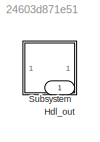
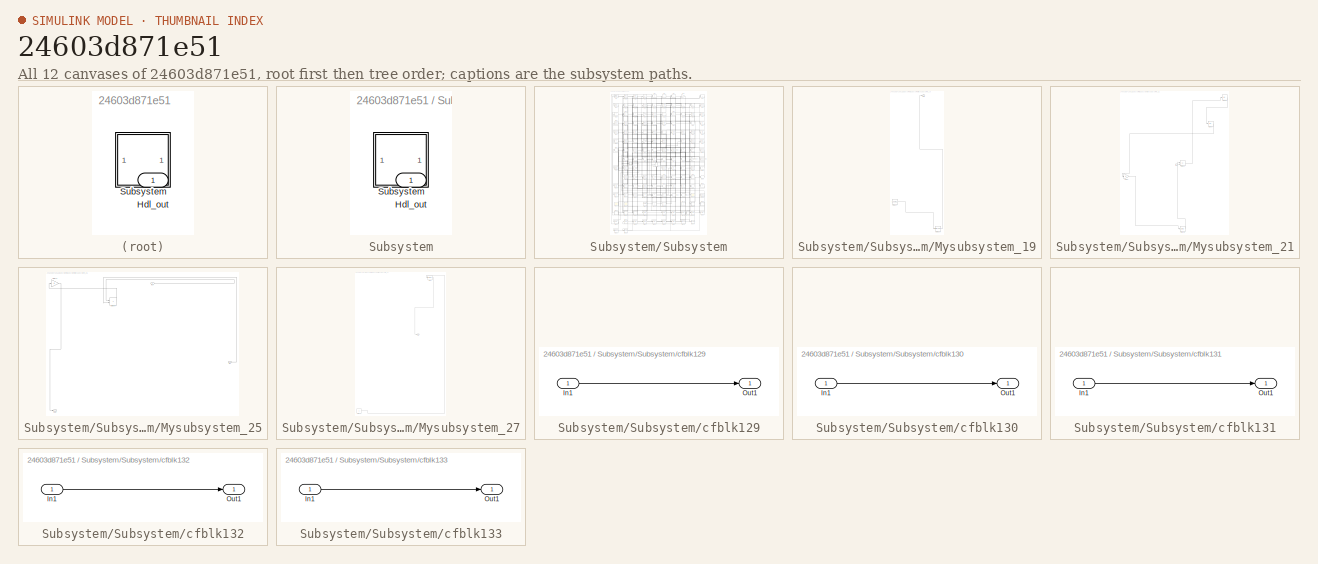
[diagram: thumbnail index - all 12 canvases of the model, root first then tree order]
MODEL slx_24603d871e51
KIND model
CONFIG AbsTol = auto
CONFIG EnableMultiTasking = off
CONFIG FixedStep = auto
CONFIG MaxStep = auto
CONFIG MinStep = auto
CONFIG RelTol = 1e-3
CONFIG SampleTimeConstraint = Unconstrained
CONFIG SolverName = VariableStepAuto
CONFIG StartTime = 0.0
CONFIG StopTime = 10.0
BLOCK [Outport] Hdl_out
  OutDataTypeStr = uint8
BLOCK [SubSystem] Subsystem
BLOCK [Outport] Subsystem/Hdl_out
  OutDataTypeStr = uint8
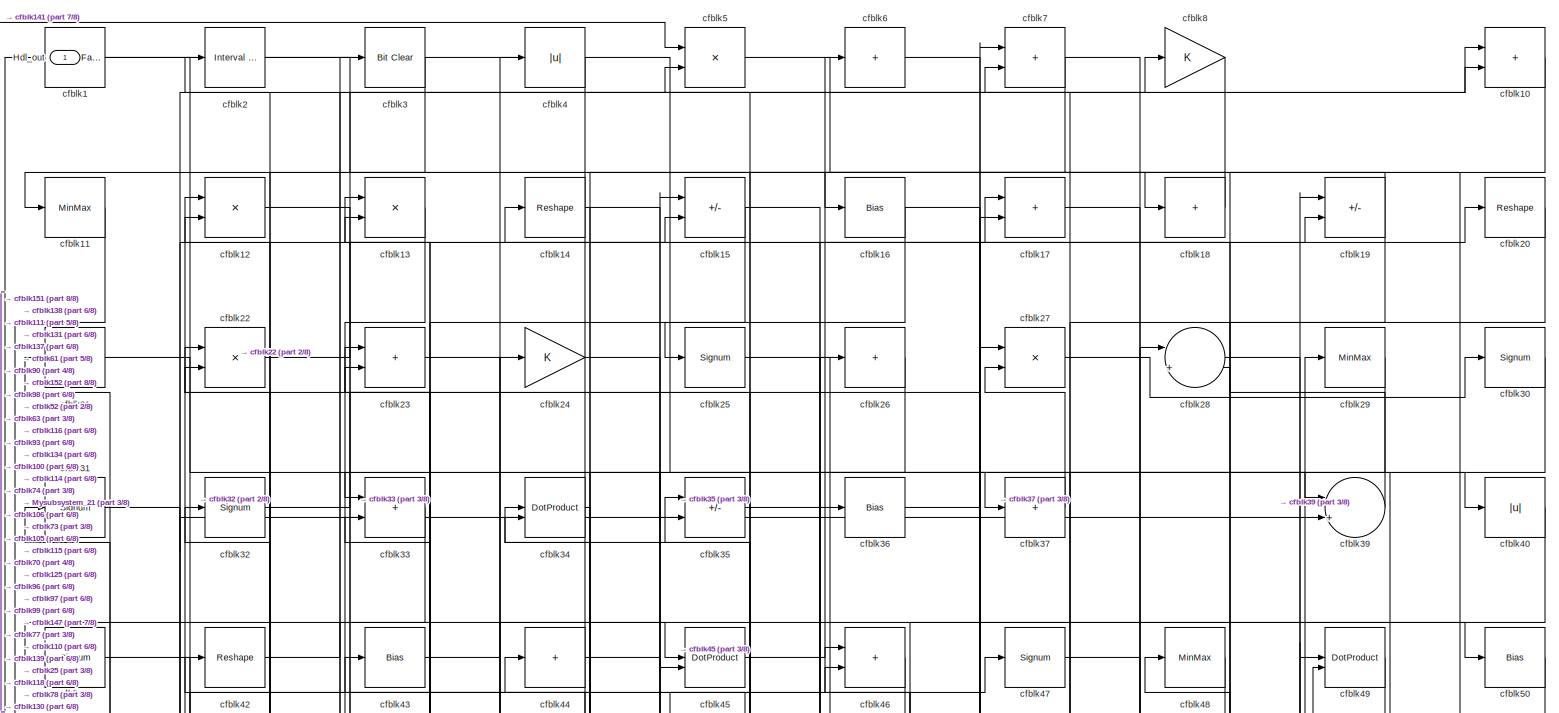
[diagram: Subsystem/Subsystem - part 1/8, full width, top band]
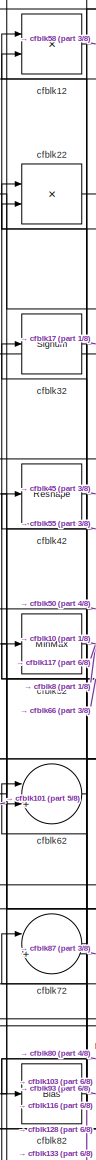
[diagram: Subsystem/Subsystem - part 2/8, top left region]
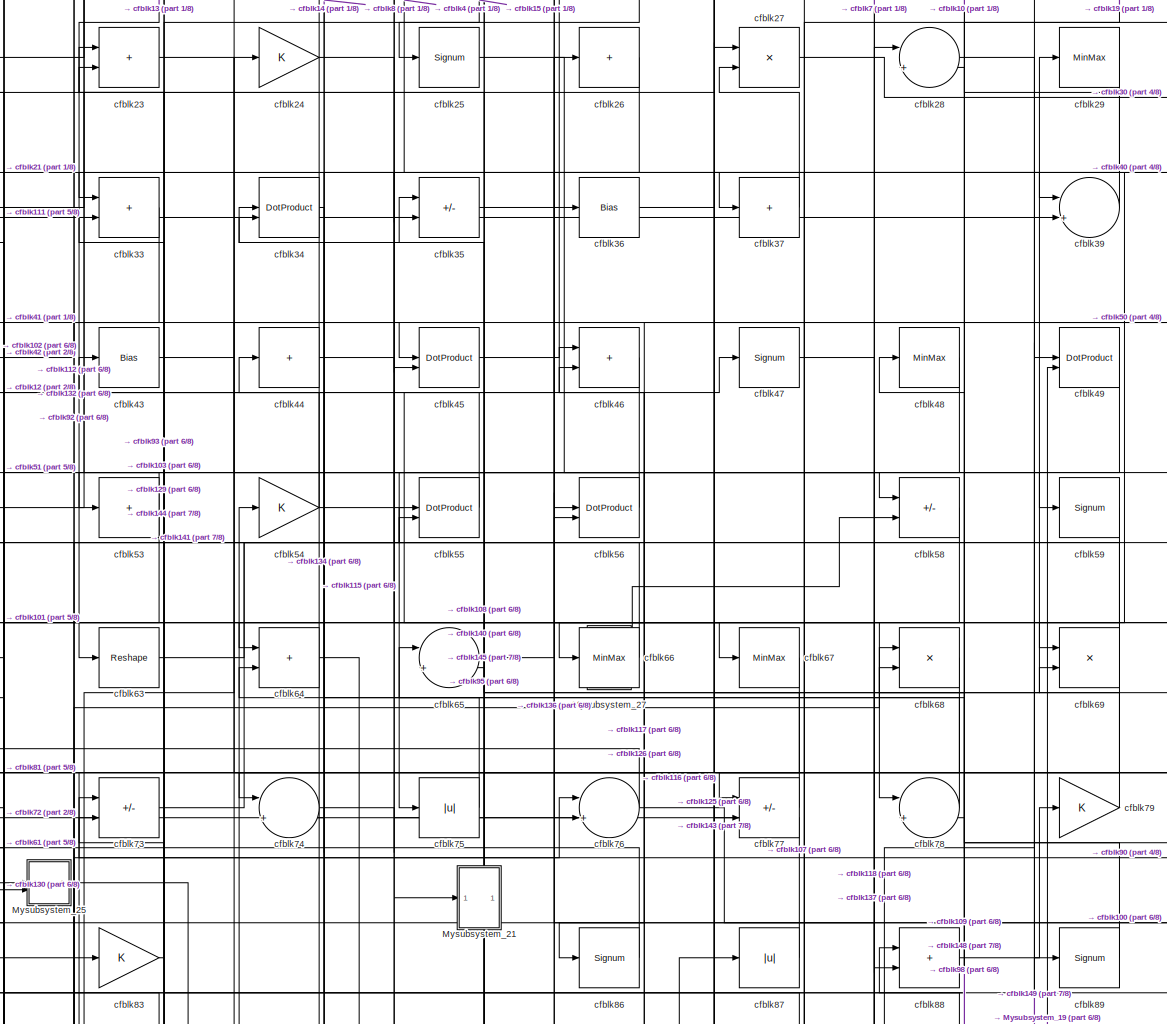
[diagram: Subsystem/Subsystem - part 3/8, central region]
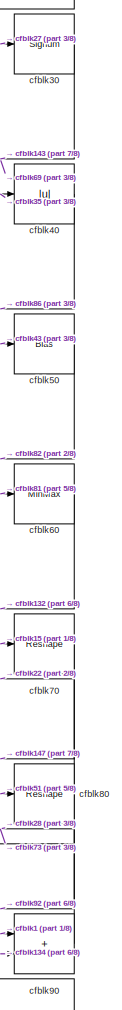
[diagram: Subsystem/Subsystem - part 4/8, middle right region]
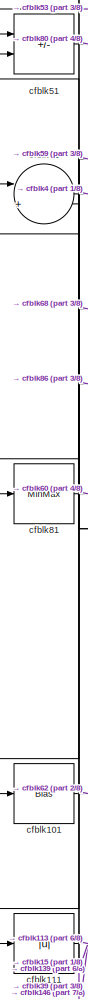
[diagram: Subsystem/Subsystem - part 5/8, middle left region]
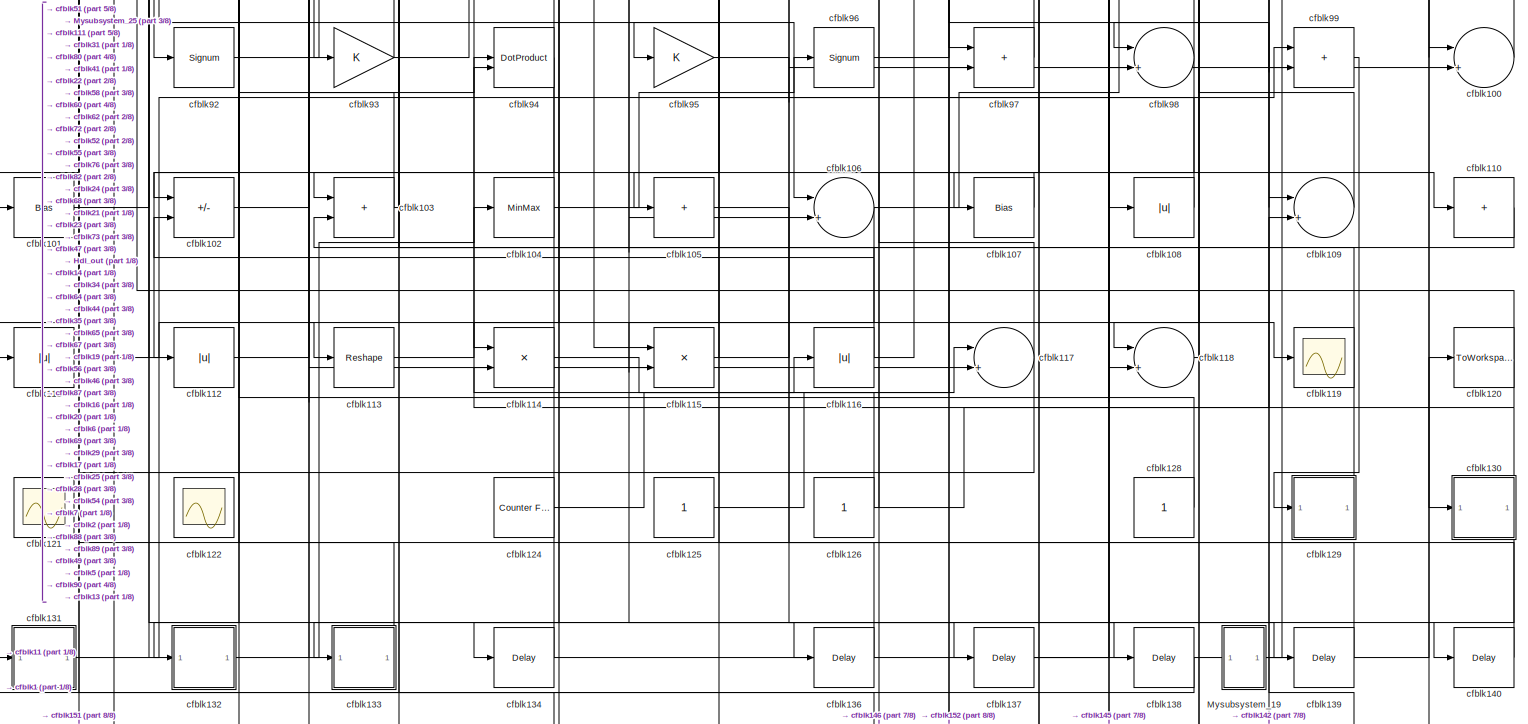
[diagram: Subsystem/Subsystem - part 6/8, full width, bottom band]
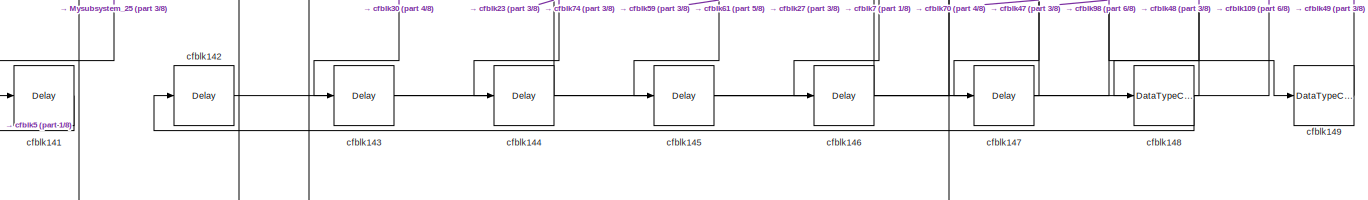
[diagram: Subsystem/Subsystem - part 7/8, full width, bottom band]
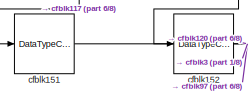
[diagram: Subsystem/Subsystem - part 8/8, bottom left region]
BLOCK [SubSystem] Subsystem/Subsystem
BLOCK [Outport] Subsystem/Subsystem/Hdl_out
  OutDataTypeStr = uint8
BLOCK [SubSystem] Subsystem/Subsystem/Mysubsystem_19
  RTWFcnName = Mysubsystem_19
  RTWFcnNameOpts = User specified
  RTWFileNameOpts = Use function name
  RTWSystemCode = Reusable function
  TreatAsAtomicUnit = on
BLOCK [Outport] Subsystem/Subsystem/Mysubsystem_19/Out1
BLOCK [Reference] Subsystem/Subsystem/Mysubsystem_19/cfblk127  REF=hdlsllib/Sources/Counter
Limited
  SourceBlock = hdlsllib/Sources/Counter\nLimited
  SourceType = Counter Limited
BLOCK [DataTypeConversion] Subsystem/Subsystem/Mysubsystem_19/cfblk150
  OutDataTypeStr = uint8
  RndMeth = Floor
  SaturateOnIntegerOverflow = off
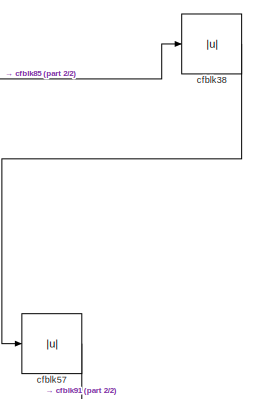
[diagram: Subsystem/Subsystem/Mysubsystem_21 - part 1/2, top right region]
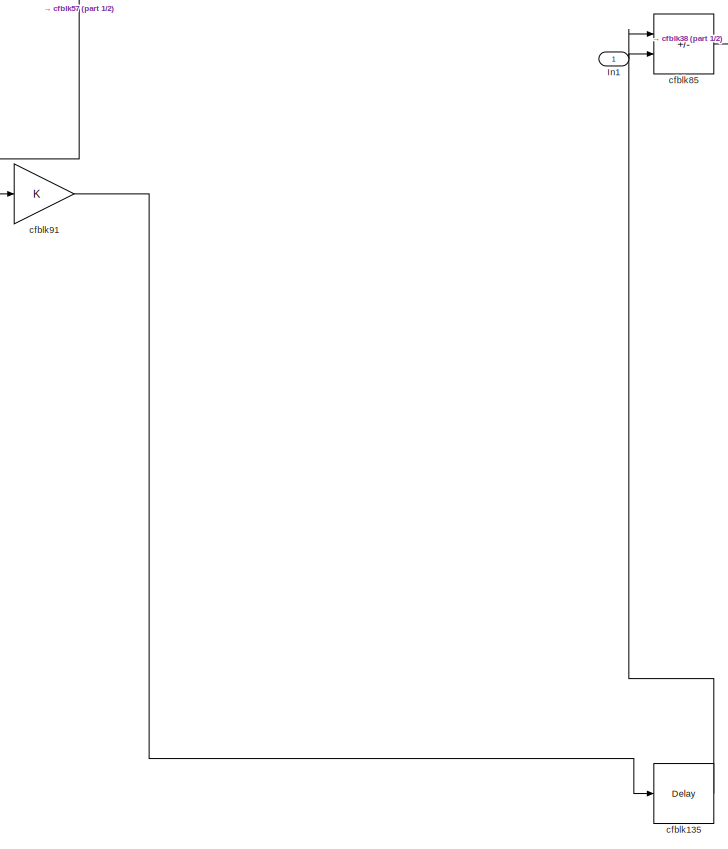
[diagram: Subsystem/Subsystem/Mysubsystem_21 - part 2/2, bottom left region]
BLOCK [SubSystem] Subsystem/Subsystem/Mysubsystem_21
  RTWFcnName = Mysubsystem_21
  RTWFcnNameOpts = User specified
  RTWFileNameOpts = Use function name
  RTWSystemCode = Reusable function
  TreatAsAtomicUnit = on
BLOCK [Inport] Subsystem/Subsystem/Mysubsystem_21/In1
BLOCK [Delay] Subsystem/Subsystem/Mysubsystem_21/cfblk135
  InputPortMap = u0
  SampleTime = 1
BLOCK [Abs] Subsystem/Subsystem/Mysubsystem_21/cfblk38
  SaturateOnIntegerOverflow = off
BLOCK [Abs] Subsystem/Subsystem/Mysubsystem_21/cfblk57
  SaturateOnIntegerOverflow = off
BLOCK [Sum] Subsystem/Subsystem/Mysubsystem_21/cfblk85
  IconShape = rectangular
  Inputs = +-
BLOCK [Gain] Subsystem/Subsystem/Mysubsystem_21/cfblk91
BLOCK [SubSystem] Subsystem/Subsystem/Mysubsystem_25
  RTWFcnName = Mysubsystem_25
  RTWFcnNameOpts = User specified
  RTWFileNameOpts = Use function name
  RTWSystemCode = Reusable function
  TreatAsAtomicUnit = on
BLOCK [Inport] Subsystem/Subsystem/Mysubsystem_25/In1
BLOCK [Inport] Subsystem/Subsystem/Mysubsystem_25/In2
  Port = 2
BLOCK [Outport] Subsystem/Subsystem/Mysubsystem_25/Out1
BLOCK [Gain] Subsystem/Subsystem/Mysubsystem_25/cfblk71
BLOCK [Sum] Subsystem/Subsystem/Mysubsystem_25/cfblk84
  IconShape = rectangular
BLOCK [SubSystem] Subsystem/Subsystem/Mysubsystem_27
  RTWFcnName = Mysubsystem_27
  RTWFcnNameOpts = User specified
  RTWFileNameOpts = Use function name
  RTWSystemCode = Reusable function
  TreatAsAtomicUnit = on
BLOCK [Outport] Subsystem/Subsystem/Mysubsystem_27/Out1
BLOCK [Constant] Subsystem/Subsystem/Mysubsystem_27/cfblk123
  SampleTime = -1
BLOCK [MinMax] Subsystem/Subsystem/Mysubsystem_27/cfblk9
BLOCK [Reference] Subsystem/Subsystem/cfblk1  REF=hdlsllib/Logic and Bit
Operations/Detect Fall
Nonpositive
  SourceBlock = hdlsllib/Logic and Bit\nOperations/Detect Fall\nNonpositive
  SourceType = Detect Fall Nonpositive
BLOCK [Sum] Subsystem/Subsystem/cfblk10
  IconShape = rectangular
  OutDataTypeStr = uint8
BLOCK [Sum] Subsystem/Subsystem/cfblk100
  Inputs = |++
  OutDataTypeStr = uint8
BLOCK [Bias] Subsystem/Subsystem/cfblk101
  Bias = 0.0
  SaturateOnIntegerOverflow = off
BLOCK [Sum] Subsystem/Subsystem/cfblk102
  IconShape = rectangular
  Inputs = +-
  OutDataTypeStr = uint8
BLOCK [Sum] Subsystem/Subsystem/cfblk103
  IconShape = rectangular
  OutDataTypeStr = uint8
BLOCK [MinMax] Subsystem/Subsystem/cfblk104
  OutDataTypeStr = uint8
BLOCK [Sum] Subsystem/Subsystem/cfblk105
  IconShape = rectangular
  Inputs = +
  OutDataTypeStr = uint8
BLOCK [Sum] Subsystem/Subsystem/cfblk106
  Inputs = |++
  OutDataTypeStr = uint8
BLOCK [Bias] Subsystem/Subsystem/cfblk107
  Bias = 0.0
  SaturateOnIntegerOverflow = off
BLOCK [Abs] Subsystem/Subsystem/cfblk108
  OutDataTypeStr = uint8
  SaturateOnIntegerOverflow = off
BLOCK [Sum] Subsystem/Subsystem/cfblk109
  Inputs = |++
  OutDataTypeStr = uint8
BLOCK [MinMax] Subsystem/Subsystem/cfblk11
  OutDataTypeStr = uint8
BLOCK [Sum] Subsystem/Subsystem/cfblk110
  IconShape = rectangular
  Inputs = +
  OutDataTypeStr = uint8
BLOCK [Abs] Subsystem/Subsystem/cfblk111
  OutDataTypeStr = uint8
  SaturateOnIntegerOverflow = off
BLOCK [Abs] Subsystem/Subsystem/cfblk112
  OutDataTypeStr = uint8
  SaturateOnIntegerOverflow = off
BLOCK [Reshape] Subsystem/Subsystem/cfblk113
BLOCK [Product] Subsystem/Subsystem/cfblk114
  Inputs = */
  OutDataTypeStr = uint8
  RndMeth = Zero
  SaturateOnIntegerOverflow = on
BLOCK [Product] Subsystem/Subsystem/cfblk115
  Inputs = */
  OutDataTypeStr = uint8
  RndMeth = Zero
  SaturateOnIntegerOverflow = on
BLOCK [Abs] Subsystem/Subsystem/cfblk116
  OutDataTypeStr = uint8
  SaturateOnIntegerOverflow = off
BLOCK [Sum] Subsystem/Subsystem/cfblk117
  Inputs = |++
  OutDataTypeStr = uint8
BLOCK [Sum] Subsystem/Subsystem/cfblk118
  Inputs = |++
  OutDataTypeStr = uint8
BLOCK [Scope] Subsystem/Subsystem/cfblk119
  Floating = off
  NumInputPorts = 1
  ScopeSpecificationString = Simulink.scopes.TimeScopeBlockCfg('CurrentConfiguration', extmgr.ConfigurationSet(extmgr.Configuration('Core','General UI',true),extmgr.Configuration('Core','Source UI',true),extmgr.Configuration('Sources','WiredSimulink',true,'DataLoggingVariableName','ScopeData1','DataLoggingSaveFormat','Array','DataLoggingLimitDataPoints',true,'DataLoggingDecimation','1'),extmgr.Configuration('Visuals','Time Do...<+868ch>
BLOCK [Product] Subsystem/Subsystem/cfblk12
  Inputs = */
  OutDataTypeStr = uint8
  RndMeth = Zero
  SaturateOnIntegerOverflow = on
BLOCK [ToWorkspace] Subsystem/Subsystem/cfblk120
  MaxDataPoints = inf
  SampleTime = -1
  SaveFormat = Timeseries
  VariableName = simout
BLOCK [Scope] Subsystem/Subsystem/cfblk121
  Floating = on
  NumInputPorts = 1
  ScopeSpecificationString = Simulink.scopes.TimeScopeBlockCfg('CurrentConfiguration', extmgr.ConfigurationSet(extmgr.Configuration('Core','General UI',true,'FigureColor',[0.156862745098039 0.156862745098039 0.156862745098039]),extmgr.Configuration('Core','Source UI',true),extmgr.Configuration('Sources','WiredSimulink',true,'DataLoggingVariableName','ScopeData2','DataLoggingSaveFormat','StructureWithTime','DataLoggingLimitDat...<+2713ch>
BLOCK [Scope] Subsystem/Subsystem/cfblk122
  Floating = on
  NumInputPorts = 1
  ScopeSpecificationString = Simulink.scopes.TimeScopeBlockCfg('CurrentConfiguration', extmgr.ConfigurationSet(extmgr.Configuration('Core','General UI',true,'FigureColor',[0.156862745098039 0.156862745098039 0.156862745098039]),extmgr.Configuration('Core','Source UI',true),extmgr.Configuration('Sources','WiredSimulink',true,'DataLoggingSaveFormat','StructureWithTime','DataLoggingLimitDataPoints',true,'DataLoggingDecimation','...<+2674ch>
BLOCK [Reference] Subsystem/Subsystem/cfblk124  REF=hdlsllib/Sources/Counter
Free-Running
  SourceBlock = hdlsllib/Sources/Counter\nFree-Running
  SourceType = Counter Free-Running
BLOCK [Constant] Subsystem/Subsystem/cfblk125
  OutDataTypeStr = uint8
  SampleTime = -1
BLOCK [Constant] Subsystem/Subsystem/cfblk126
  OutDataTypeStr = uint8
  SampleTime = -1
BLOCK [Constant] Subsystem/Subsystem/cfblk128
  OutDataTypeStr = uint8
  SampleTime = -1
BLOCK [SubSystem] Subsystem/Subsystem/cfblk129
  LibrarySourceBlock = hdlsllib/Ports &\nSubsystems/Subsystem
BLOCK [Inport] Subsystem/Subsystem/cfblk129/In1
BLOCK [Outport] Subsystem/Subsystem/cfblk129/Out1
BLOCK [Product] Subsystem/Subsystem/cfblk13
  Inputs = */
  OutDataTypeStr = uint8
  RndMeth = Zero
  SaturateOnIntegerOverflow = on
BLOCK [SubSystem] Subsystem/Subsystem/cfblk130
  LibrarySourceBlock = hdlsllib/Ports &\nSubsystems/Subsystem
BLOCK [Inport] Subsystem/Subsystem/cfblk130/In1
BLOCK [Outport] Subsystem/Subsystem/cfblk130/Out1
BLOCK [SubSystem] Subsystem/Subsystem/cfblk131
  LibrarySourceBlock = hdlsllib/Ports &\nSubsystems/Subsystem
BLOCK [Inport] Subsystem/Subsystem/cfblk131/In1
BLOCK [Outport] Subsystem/Subsystem/cfblk131/Out1
BLOCK [SubSystem] Subsystem/Subsystem/cfblk132
  LibrarySourceBlock = hdlsllib/Ports &\nSubsystems/Subsystem
BLOCK [Inport] Subsystem/Subsystem/cfblk132/In1
BLOCK [Outport] Subsystem/Subsystem/cfblk132/Out1
BLOCK [SubSystem] Subsystem/Subsystem/cfblk133
  LibrarySourceBlock = hdlsllib/Ports &\nSubsystems/Subsystem
BLOCK [Inport] Subsystem/Subsystem/cfblk133/In1
BLOCK [Outport] Subsystem/Subsystem/cfblk133/Out1
BLOCK [Delay] Subsystem/Subsystem/cfblk134
  InputPortMap = u0
  SampleTime = 1
BLOCK [Delay] Subsystem/Subsystem/cfblk136
  InputPortMap = u0
  SampleTime = 1
BLOCK [Delay] Subsystem/Subsystem/cfblk137
  InputPortMap = u0
  SampleTime = 1
BLOCK [Delay] Subsystem/Subsystem/cfblk138
  InputPortMap = u0
  SampleTime = 1
BLOCK [Delay] Subsystem/Subsystem/cfblk139
  InputPortMap = u0
  SampleTime = 1
BLOCK [Reshape] Subsystem/Subsystem/cfblk14
BLOCK [Delay] Subsystem/Subsystem/cfblk140
  InputPortMap = u0
  SampleTime = 1
BLOCK [Delay] Subsystem/Subsystem/cfblk141
  InputPortMap = u0
  SampleTime = 1
BLOCK [Delay] Subsystem/Subsystem/cfblk142
  InputPortMap = u0
  SampleTime = 1
BLOCK [Delay] Subsystem/Subsystem/cfblk143
  InputPortMap = u0
  SampleTime = 1
BLOCK [Delay] Subsystem/Subsystem/cfblk144
  InputPortMap = u0
  SampleTime = 1
BLOCK [Delay] Subsystem/Subsystem/cfblk145
  InputPortMap = u0
  SampleTime = 1
BLOCK [Delay] Subsystem/Subsystem/cfblk146
  InputPortMap = u0
  SampleTime = 1
BLOCK [Delay] Subsystem/Subsystem/cfblk147
  InputPortMap = u0
  SampleTime = 1
BLOCK [DataTypeConversion] Subsystem/Subsystem/cfblk148
  OutDataTypeStr = uint8
  RndMeth = Floor
  SaturateOnIntegerOverflow = off
BLOCK [DataTypeConversion] Subsystem/Subsystem/cfblk149
  OutDataTypeStr = uint8
  RndMeth = Floor
  SaturateOnIntegerOverflow = off
BLOCK [Sum] Subsystem/Subsystem/cfblk15
  IconShape = rectangular
  Inputs = +-
  OutDataTypeStr = uint8
BLOCK [DataTypeConversion] Subsystem/Subsystem/cfblk151
  OutDataTypeStr = uint8
  RndMeth = Floor
  SaturateOnIntegerOverflow = off
BLOCK [DataTypeConversion] Subsystem/Subsystem/cfblk152
  OutDataTypeStr = uint8
  RndMeth = Floor
  SaturateOnIntegerOverflow = off
BLOCK [Bias] Subsystem/Subsystem/cfblk16
  Bias = 0.0
  SaturateOnIntegerOverflow = off
BLOCK [Sum] Subsystem/Subsystem/cfblk17
  IconShape = rectangular
  OutDataTypeStr = uint8
BLOCK [Sum] Subsystem/Subsystem/cfblk18
  IconShape = rectangular
  Inputs = +
  OutDataTypeStr = uint8
BLOCK [Sum] Subsystem/Subsystem/cfblk19
  IconShape = rectangular
  Inputs = +-
  OutDataTypeStr = uint8
BLOCK [Reference] Subsystem/Subsystem/cfblk2  REF=hdlsllib/Logic and Bit
Operations/Interval Test
  SourceBlock = hdlsllib/Logic and Bit\nOperations/Interval Test
  SourceType = Interval Test
BLOCK [Reshape] Subsystem/Subsystem/cfblk20
BLOCK [Sum] Subsystem/Subsystem/cfblk21
  IconShape = rectangular
  Inputs = +
  OutDataTypeStr = uint8
BLOCK [Product] Subsystem/Subsystem/cfblk22
  Inputs = */
  OutDataTypeStr = uint8
  RndMeth = Zero
  SaturateOnIntegerOverflow = on
BLOCK [Sum] Subsystem/Subsystem/cfblk23
  IconShape = rectangular
  OutDataTypeStr = uint8
BLOCK [Gain] Subsystem/Subsystem/cfblk24
  OutDataTypeStr = uint8
BLOCK [Signum] Subsystem/Subsystem/cfblk25
BLOCK [Sum] Subsystem/Subsystem/cfblk26
  IconShape = rectangular
  Inputs = +
  OutDataTypeStr = uint8
BLOCK [Product] Subsystem/Subsystem/cfblk27
  Inputs = */
  OutDataTypeStr = uint8
  RndMeth = Zero
  SaturateOnIntegerOverflow = on
BLOCK [Sum] Subsystem/Subsystem/cfblk28
  Inputs = |++
  OutDataTypeStr = uint8
BLOCK [MinMax] Subsystem/Subsystem/cfblk29
  OutDataTypeStr = uint8
BLOCK [Reference] Subsystem/Subsystem/cfblk3  REF=simulink/Logic and Bit
Operations/Bit Clear
  LibrarySourceBlock = hdlsllib/Logic and Bit\nOperations/Bit Clear
  SourceBlock = simulink/Logic and Bit\nOperations/Bit Clear
  SourceType = Bit Clear
BLOCK [Signum] Subsystem/Subsystem/cfblk30
BLOCK [Signum] Subsystem/Subsystem/cfblk31
BLOCK [Signum] Subsystem/Subsystem/cfblk32
BLOCK [Sum] Subsystem/Subsystem/cfblk33
  IconShape = rectangular
  OutDataTypeStr = uint8
BLOCK [DotProduct] Subsystem/Subsystem/cfblk34
  OutDataTypeStr = uint8
BLOCK [Sum] Subsystem/Subsystem/cfblk35
  IconShape = rectangular
  Inputs = +-
  OutDataTypeStr = uint8
BLOCK [Bias] Subsystem/Subsystem/cfblk36
  Bias = 0.0
  SaturateOnIntegerOverflow = off
BLOCK [Sum] Subsystem/Subsystem/cfblk37
  IconShape = rectangular
  Inputs = +
  OutDataTypeStr = uint8
BLOCK [Sum] Subsystem/Subsystem/cfblk39
  Inputs = |++
  OutDataTypeStr = uint8
BLOCK [Abs] Subsystem/Subsystem/cfblk4
  OutDataTypeStr = uint8
  SaturateOnIntegerOverflow = off
BLOCK [Abs] Subsystem/Subsystem/cfblk40
  OutDataTypeStr = uint8
  SaturateOnIntegerOverflow = off
BLOCK [Signum] Subsystem/Subsystem/cfblk41
BLOCK [Reshape] Subsystem/Subsystem/cfblk42
BLOCK [Bias] Subsystem/Subsystem/cfblk43
  Bias = 0.0
  SaturateOnIntegerOverflow = off
BLOCK [Sum] Subsystem/Subsystem/cfblk44
  IconShape = rectangular
  Inputs = +
  OutDataTypeStr = uint8
BLOCK [DotProduct] Subsystem/Subsystem/cfblk45
  OutDataTypeStr = uint8
BLOCK [Sum] Subsystem/Subsystem/cfblk46
  IconShape = rectangular
  OutDataTypeStr = uint8
BLOCK [Signum] Subsystem/Subsystem/cfblk47
BLOCK [MinMax] Subsystem/Subsystem/cfblk48
  OutDataTypeStr = uint8
BLOCK [DotProduct] Subsystem/Subsystem/cfblk49
  OutDataTypeStr = uint8
BLOCK [Product] Subsystem/Subsystem/cfblk5
  Inputs = */
  OutDataTypeStr = uint8
  RndMeth = Zero
  SaturateOnIntegerOverflow = on
BLOCK [Bias] Subsystem/Subsystem/cfblk50
  Bias = 0.0
  SaturateOnIntegerOverflow = off
BLOCK [Sum] Subsystem/Subsystem/cfblk51
  IconShape = rectangular
  Inputs = +-
  OutDataTypeStr = uint8
BLOCK [MinMax] Subsystem/Subsystem/cfblk52
  OutDataTypeStr = uint8
BLOCK [Sum] Subsystem/Subsystem/cfblk53
  IconShape = rectangular
  Inputs = +
  OutDataTypeStr = uint8
BLOCK [Gain] Subsystem/Subsystem/cfblk54
  OutDataTypeStr = uint8
BLOCK [DotProduct] Subsystem/Subsystem/cfblk55
  OutDataTypeStr = uint8
BLOCK [DotProduct] Subsystem/Subsystem/cfblk56
  OutDataTypeStr = uint8
BLOCK [Sum] Subsystem/Subsystem/cfblk58
  IconShape = rectangular
  Inputs = +-
  OutDataTypeStr = uint8
BLOCK [Signum] Subsystem/Subsystem/cfblk59
BLOCK [Sum] Subsystem/Subsystem/cfblk6
  IconShape = rectangular
  Inputs = +
  OutDataTypeStr = uint8
BLOCK [MinMax] Subsystem/Subsystem/cfblk60
  OutDataTypeStr = uint8
BLOCK [Sum] Subsystem/Subsystem/cfblk61
  Inputs = |++
  OutDataTypeStr = uint8
BLOCK [Sum] Subsystem/Subsystem/cfblk62
  Inputs = |++
  OutDataTypeStr = uint8
BLOCK [Reshape] Subsystem/Subsystem/cfblk63
BLOCK [Sum] Subsystem/Subsystem/cfblk64
  IconShape = rectangular
  OutDataTypeStr = uint8
BLOCK [Sum] Subsystem/Subsystem/cfblk65
  Inputs = |++
  OutDataTypeStr = uint8
BLOCK [MinMax] Subsystem/Subsystem/cfblk66
  OutDataTypeStr = uint8
BLOCK [MinMax] Subsystem/Subsystem/cfblk67
  OutDataTypeStr = uint8
BLOCK [Product] Subsystem/Subsystem/cfblk68
  Inputs = */
  OutDataTypeStr = uint8
  RndMeth = Zero
  SaturateOnIntegerOverflow = on
BLOCK [Product] Subsystem/Subsystem/cfblk69
  Inputs = */
  OutDataTypeStr = uint8
  RndMeth = Zero
  SaturateOnIntegerOverflow = on
BLOCK [Sum] Subsystem/Subsystem/cfblk7
  IconShape = rectangular
  OutDataTypeStr = uint8
BLOCK [Reshape] Subsystem/Subsystem/cfblk70
BLOCK [Sum] Subsystem/Subsystem/cfblk72
  Inputs = |++
  OutDataTypeStr = uint8
BLOCK [Sum] Subsystem/Subsystem/cfblk73
  IconShape = rectangular
  Inputs = +-
  OutDataTypeStr = uint8
BLOCK [Sum] Subsystem/Subsystem/cfblk74
  Inputs = |++
  OutDataTypeStr = uint8
BLOCK [Abs] Subsystem/Subsystem/cfblk75
  OutDataTypeStr = uint8
  SaturateOnIntegerOverflow = off
BLOCK [Sum] Subsystem/Subsystem/cfblk76
  Inputs = |++
  OutDataTypeStr = uint8
BLOCK [Sum] Subsystem/Subsystem/cfblk77
  IconShape = rectangular
  Inputs = +-
  OutDataTypeStr = uint8
BLOCK [Sum] Subsystem/Subsystem/cfblk78
  Inputs = |++
  OutDataTypeStr = uint8
BLOCK [Gain] Subsystem/Subsystem/cfblk79
  OutDataTypeStr = uint8
BLOCK [Gain] Subsystem/Subsystem/cfblk8
  OutDataTypeStr = uint8
BLOCK [Reshape] Subsystem/Subsystem/cfblk80
BLOCK [MinMax] Subsystem/Subsystem/cfblk81
  OutDataTypeStr = uint8
BLOCK [Bias] Subsystem/Subsystem/cfblk82
  Bias = 0.0
  SaturateOnIntegerOverflow = off
BLOCK [Gain] Subsystem/Subsystem/cfblk83
  OutDataTypeStr = uint8
BLOCK [Signum] Subsystem/Subsystem/cfblk86
BLOCK [Abs] Subsystem/Subsystem/cfblk87
  OutDataTypeStr = uint8
  SaturateOnIntegerOverflow = off
BLOCK [Sum] Subsystem/Subsystem/cfblk88
  IconShape = rectangular
  OutDataTypeStr = uint8
BLOCK [Signum] Subsystem/Subsystem/cfblk89
BLOCK [Sum] Subsystem/Subsystem/cfblk90
  IconShape = rectangular
  OutDataTypeStr = uint8
BLOCK [Signum] Subsystem/Subsystem/cfblk92
BLOCK [Gain] Subsystem/Subsystem/cfblk93
  OutDataTypeStr = uint8
BLOCK [DotProduct] Subsystem/Subsystem/cfblk94
  OutDataTypeStr = uint8
BLOCK [Gain] Subsystem/Subsystem/cfblk95
  OutDataTypeStr = uint8
BLOCK [Signum] Subsystem/Subsystem/cfblk96
BLOCK [Sum] Subsystem/Subsystem/cfblk97
  IconShape = rectangular
  OutDataTypeStr = uint8
BLOCK [Sum] Subsystem/Subsystem/cfblk98
  Inputs = |++
  OutDataTypeStr = uint8
BLOCK [Sum] Subsystem/Subsystem/cfblk99
  IconShape = rectangular
  OutDataTypeStr = uint8
LINE Subsystem/Subsystem/Mysubsystem_19/cfblk127:1 -> Subsystem/Subsystem/Mysubsystem_19/cfblk150:1
LINE Subsystem/Subsystem/Mysubsystem_19/cfblk150:1 -> Subsystem/Subsystem/Mysubsystem_19/Out1:1
LINE Subsystem/Subsystem/Mysubsystem_19:1 -> Subsystem/Subsystem/cfblk49:2
LINE Subsystem/Subsystem/Mysubsystem_21/In1:1 -> Subsystem/Subsystem/Mysubsystem_21/cfblk85:2
LINE Subsystem/Subsystem/Mysubsystem_21/cfblk135:1 -> Subsystem/Subsystem/Mysubsystem_21/cfblk85:1
LINE Subsystem/Subsystem/Mysubsystem_21/cfblk38:1 -> Subsystem/Subsystem/Mysubsystem_21/cfblk57:1
LINE Subsystem/Subsystem/Mysubsystem_21/cfblk57:1 -> Subsystem/Subsystem/Mysubsystem_21/cfblk91:1
LINE Subsystem/Subsystem/Mysubsystem_21/cfblk85:1 -> Subsystem/Subsystem/Mysubsystem_21/cfblk38:1
LINE Subsystem/Subsystem/Mysubsystem_21/cfblk91:1 -> Subsystem/Subsystem/Mysubsystem_21/cfblk135:1
LINE Subsystem/Subsystem/Mysubsystem_25/In1:1 -> Subsystem/Subsystem/Mysubsystem_25/cfblk84:1
LINE Subsystem/Subsystem/Mysubsystem_25/In2:1 -> Subsystem/Subsystem/Mysubsystem_25/cfblk84:2
LINE Subsystem/Subsystem/Mysubsystem_25/cfblk71:1 -> Subsystem/Subsystem/Mysubsystem_25/Out1:1
LINE Subsystem/Subsystem/Mysubsystem_25/cfblk84:1 -> Subsystem/Subsystem/Mysubsystem_25/cfblk71:1
LINE Subsystem/Subsystem/Mysubsystem_25:1 -> Subsystem/Subsystem/cfblk141:1
LINE Subsystem/Subsystem/Mysubsystem_27/cfblk123:1 -> Subsystem/Subsystem/Mysubsystem_27/cfblk9:1
LINE Subsystem/Subsystem/Mysubsystem_27/cfblk9:1 -> Subsystem/Subsystem/Mysubsystem_27/Out1:1
LINE Subsystem/Subsystem/Mysubsystem_27:1 -> Subsystem/Subsystem/cfblk58:2
NET Subsystem/Subsystem/cfblk100:1 -> Subsystem/Subsystem/cfblk13:1, Subsystem/Subsystem/cfblk34:1
LINE Subsystem/Subsystem/cfblk101:1 -> Subsystem/Subsystem/cfblk62:2
LINE Subsystem/Subsystem/cfblk102:1 -> Subsystem/Subsystem/cfblk94:2
NET Subsystem/Subsystem/cfblk103:1 -> Subsystem/Subsystem/cfblk72:1, Subsystem/Subsystem/cfblk73:2
LINE Subsystem/Subsystem/cfblk104:1 -> Subsystem/Subsystem/cfblk96:1
LINE Subsystem/Subsystem/cfblk105:1 -> Subsystem/Subsystem/cfblk138:1
NET Subsystem/Subsystem/cfblk106:1 -> Subsystem/Subsystem/cfblk115:2, Subsystem/Subsystem/cfblk19:1
LINE Subsystem/Subsystem/cfblk107:1 -> Subsystem/Subsystem/cfblk103:1
LINE Subsystem/Subsystem/cfblk108:1 -> Subsystem/Subsystem/cfblk35:1
LINE Subsystem/Subsystem/cfblk109:1 -> Subsystem/Subsystem/cfblk65:1
LINE Subsystem/Subsystem/cfblk10:1 -> Subsystem/Subsystem/cfblk78:2
LINE Subsystem/Subsystem/cfblk110:1 -> Subsystem/Subsystem/cfblk103:2
NET Subsystem/Subsystem/cfblk111:1 -> Subsystem/Subsystem/cfblk113:1, Subsystem/Subsystem/cfblk15:2, Subsystem/Subsystem/cfblk39:2
NET Subsystem/Subsystem/cfblk112:1 -> Subsystem/Subsystem/cfblk119:1, Subsystem/Subsystem/cfblk76:1
LINE Subsystem/Subsystem/cfblk113:1 -> Subsystem/Subsystem/cfblk94:1
LINE Subsystem/Subsystem/cfblk114:1 -> Subsystem/Subsystem/cfblk117:1
NET Subsystem/Subsystem/cfblk115:1 -> Subsystem/Subsystem/cfblk19:2, Subsystem/Subsystem/cfblk5:2
NET Subsystem/Subsystem/cfblk116:1 -> Subsystem/Subsystem/cfblk102:2, Subsystem/Subsystem/cfblk13:2, Subsystem/Subsystem/cfblk52:1, Subsystem/Subsystem/cfblk87:1
NET Subsystem/Subsystem/cfblk117:1 -> Subsystem/Subsystem/cfblk151:1, Subsystem/Subsystem/cfblk46:1
LINE Subsystem/Subsystem/cfblk118:1 -> Subsystem/Subsystem/cfblk88:1
LINE Subsystem/Subsystem/cfblk11:1 -> Subsystem/Subsystem/cfblk131:1
LINE Subsystem/Subsystem/cfblk124:1 -> Subsystem/Subsystem/cfblk116:1
NET Subsystem/Subsystem/cfblk125:1 -> Subsystem/Subsystem/cfblk20:1, Subsystem/Subsystem/cfblk69:2
NET Subsystem/Subsystem/cfblk126:1 -> Subsystem/Subsystem/cfblk46:2, Subsystem/Subsystem/cfblk54:1, Subsystem/Subsystem/cfblk89:1
LINE Subsystem/Subsystem/cfblk128:1 -> Subsystem/Subsystem/cfblk62:1
LINE Subsystem/Subsystem/cfblk129/In1:1 -> Subsystem/Subsystem/cfblk129/Out1:1
LINE Subsystem/Subsystem/cfblk129:1 -> Subsystem/Subsystem/cfblk23:1
LINE Subsystem/Subsystem/cfblk12:1 -> Subsystem/Subsystem/cfblk58:1
LINE Subsystem/Subsystem/cfblk130/In1:1 -> Subsystem/Subsystem/cfblk130/Out1:1
NET Subsystem/Subsystem/cfblk130:1 -> Subsystem/Subsystem/Mysubsystem_25:2, Subsystem/Subsystem/cfblk114:2, Subsystem/Subsystem/cfblk133:1, Subsystem/Subsystem/cfblk140:1
LINE Subsystem/Subsystem/cfblk131/In1:1 -> Subsystem/Subsystem/cfblk131/Out1:1
NET Subsystem/Subsystem/cfblk131:1 -> Subsystem/Subsystem/cfblk6:1, Subsystem/Subsystem/cfblk99:1
LINE Subsystem/Subsystem/cfblk132/In1:1 -> Subsystem/Subsystem/cfblk132/Out1:1
NET Subsystem/Subsystem/cfblk132:1 -> Subsystem/Subsystem/cfblk104:1, Subsystem/Subsystem/cfblk55:2
LINE Subsystem/Subsystem/cfblk133/In1:1 -> Subsystem/Subsystem/cfblk133/Out1:1
LINE Subsystem/Subsystem/cfblk133:1 -> Subsystem/Subsystem/cfblk22:1
NET Subsystem/Subsystem/cfblk134:1 -> Subsystem/Subsystem/Hdl_out:1, Subsystem/Subsystem/cfblk90:2
LINE Subsystem/Subsystem/cfblk136:1 -> Subsystem/Subsystem/cfblk56:1
LINE Subsystem/Subsystem/cfblk137:1 -> Subsystem/Subsystem/cfblk28:1
LINE Subsystem/Subsystem/cfblk138:1 -> Subsystem/Subsystem/cfblk1:1
LINE Subsystem/Subsystem/cfblk139:1 -> Subsystem/Subsystem/cfblk51:2
LINE Subsystem/Subsystem/cfblk13:1 -> Subsystem/Subsystem/cfblk63:1
LINE Subsystem/Subsystem/cfblk140:1 -> Subsystem/Subsystem/cfblk65:2
LINE Subsystem/Subsystem/cfblk141:1 -> Subsystem/Subsystem/cfblk5:1
LINE Subsystem/Subsystem/cfblk142:1 -> Subsystem/Subsystem/cfblk109:2
LINE Subsystem/Subsystem/cfblk143:1 -> Subsystem/Subsystem/cfblk27:1
LINE Subsystem/Subsystem/cfblk144:1 -> Subsystem/Subsystem/cfblk23:2
LINE Subsystem/Subsystem/cfblk145:1 -> Subsystem/Subsystem/cfblk98:2
LINE Subsystem/Subsystem/cfblk146:1 -> Subsystem/Subsystem/cfblk61:2
LINE Subsystem/Subsystem/cfblk147:1 -> Subsystem/Subsystem/cfblk7:2
NET Subsystem/Subsystem/cfblk148:1 -> Subsystem/Subsystem/cfblk142:1, Subsystem/Subsystem/cfblk48:1
LINE Subsystem/Subsystem/cfblk149:1 -> Subsystem/Subsystem/cfblk49:1
NET Subsystem/Subsystem/cfblk14:1 -> Subsystem/Subsystem/Mysubsystem_21:1, Subsystem/Subsystem/cfblk106:2, Subsystem/Subsystem/cfblk114:1
LINE Subsystem/Subsystem/cfblk151:1 -> Subsystem/Subsystem/cfblk3:1
NET Subsystem/Subsystem/cfblk152:1 -> Subsystem/Subsystem/cfblk120:1, Subsystem/Subsystem/cfblk97:2
NET Subsystem/Subsystem/cfblk15:1 -> Subsystem/Subsystem/cfblk33:1, Subsystem/Subsystem/cfblk70:1
NET Subsystem/Subsystem/cfblk16:1 -> Subsystem/Subsystem/cfblk105:1, Subsystem/Subsystem/cfblk97:1
LINE Subsystem/Subsystem/cfblk17:1 -> Subsystem/Subsystem/cfblk139:1
LINE Subsystem/Subsystem/cfblk18:1 -> Subsystem/Subsystem/cfblk11:1
NET Subsystem/Subsystem/cfblk19:1 -> Subsystem/Subsystem/cfblk16:1, Subsystem/Subsystem/cfblk77:1
LINE Subsystem/Subsystem/cfblk1:1 -> Subsystem/Subsystem/cfblk90:1
LINE Subsystem/Subsystem/cfblk20:1 -> Subsystem/Subsystem/cfblk118:1
LINE Subsystem/Subsystem/cfblk21:1 -> Subsystem/Subsystem/cfblk35:2
LINE Subsystem/Subsystem/cfblk22:1 -> Subsystem/Subsystem/cfblk17:1
LINE Subsystem/Subsystem/cfblk23:1 -> Subsystem/Subsystem/cfblk59:1
LINE Subsystem/Subsystem/cfblk24:1 -> Subsystem/Subsystem/cfblk67:1
NET Subsystem/Subsystem/cfblk25:1 -> Subsystem/Subsystem/cfblk108:1, Subsystem/Subsystem/cfblk88:2
NET Subsystem/Subsystem/cfblk26:1 -> Subsystem/Subsystem/cfblk45:2, Subsystem/Subsystem/cfblk64:1
LINE Subsystem/Subsystem/cfblk27:1 -> Subsystem/Subsystem/cfblk30:1
LINE Subsystem/Subsystem/cfblk28:1 -> Subsystem/Subsystem/cfblk109:1
LINE Subsystem/Subsystem/cfblk29:1 -> Subsystem/Subsystem/cfblk107:1
LINE Subsystem/Subsystem/cfblk2:1 -> Subsystem/Subsystem/cfblk18:1
NET Subsystem/Subsystem/cfblk30:1 -> Subsystem/Subsystem/cfblk143:1, Subsystem/Subsystem/cfblk69:1
LINE Subsystem/Subsystem/cfblk31:1 -> Subsystem/Subsystem/cfblk137:1
LINE Subsystem/Subsystem/cfblk32:1 -> Subsystem/Subsystem/cfblk17:2
LINE Subsystem/Subsystem/cfblk33:1 -> Subsystem/Subsystem/cfblk41:1
LINE Subsystem/Subsystem/cfblk34:1 -> Subsystem/Subsystem/cfblk134:1
LINE Subsystem/Subsystem/cfblk35:1 -> Subsystem/Subsystem/cfblk40:1
LINE Subsystem/Subsystem/cfblk36:1 -> Subsystem/Subsystem/cfblk39:1
LINE Subsystem/Subsystem/cfblk37:1 -> Subsystem/Subsystem/cfblk27:2
LINE Subsystem/Subsystem/cfblk39:1 -> Subsystem/Subsystem/cfblk14:1
LINE Subsystem/Subsystem/cfblk3:1 -> Subsystem/Subsystem/cfblk152:1
LINE Subsystem/Subsystem/cfblk40:1 -> Subsystem/Subsystem/cfblk86:1
LINE Subsystem/Subsystem/cfblk41:1 -> Subsystem/Subsystem/cfblk106:1
LINE Subsystem/Subsystem/cfblk42:1 -> Subsystem/Subsystem/cfblk45:1
NET Subsystem/Subsystem/cfblk43:1 -> Subsystem/Subsystem/cfblk50:1, Subsystem/Subsystem/cfblk77:2
LINE Subsystem/Subsystem/cfblk44:1 -> Subsystem/Subsystem/cfblk136:1
LINE Subsystem/Subsystem/cfblk45:1 -> Subsystem/Subsystem/cfblk10:1
LINE Subsystem/Subsystem/cfblk46:1 -> Subsystem/Subsystem/cfblk75:1
LINE Subsystem/Subsystem/cfblk47:1 -> Subsystem/Subsystem/cfblk149:1
LINE Subsystem/Subsystem/cfblk48:1 -> Subsystem/Subsystem/cfblk66:1
LINE Subsystem/Subsystem/cfblk49:1 -> Subsystem/Subsystem/cfblk148:1
LINE Subsystem/Subsystem/cfblk4:1 -> Subsystem/Subsystem/cfblk37:1
LINE Subsystem/Subsystem/cfblk50:1 -> Subsystem/Subsystem/cfblk82:1
LINE Subsystem/Subsystem/cfblk51:1 -> Subsystem/Subsystem/cfblk80:1
NET Subsystem/Subsystem/cfblk52:1 -> Subsystem/Subsystem/cfblk10:2, Subsystem/Subsystem/cfblk117:2, Subsystem/Subsystem/cfblk8:1
NET Subsystem/Subsystem/cfblk53:1 -> Subsystem/Subsystem/cfblk111:1, Subsystem/Subsystem/cfblk51:1
NET Subsystem/Subsystem/cfblk54:1 -> Subsystem/Subsystem/cfblk118:2, Subsystem/Subsystem/cfblk26:1, Subsystem/Subsystem/cfblk33:2
LINE Subsystem/Subsystem/cfblk55:1 -> Subsystem/Subsystem/cfblk12:1
LINE Subsystem/Subsystem/cfblk56:1 -> Subsystem/Subsystem/cfblk53:1
NET Subsystem/Subsystem/cfblk58:1 -> Subsystem/Subsystem/cfblk102:1, Subsystem/Subsystem/cfblk74:2, Subsystem/Subsystem/cfblk78:1
NET Subsystem/Subsystem/cfblk59:1 -> Subsystem/Subsystem/cfblk101:1, Subsystem/Subsystem/cfblk145:1
LINE Subsystem/Subsystem/cfblk5:1 -> Subsystem/Subsystem/cfblk130:1
LINE Subsystem/Subsystem/cfblk60:1 -> Subsystem/Subsystem/cfblk132:1
LINE Subsystem/Subsystem/cfblk61:1 -> Subsystem/Subsystem/cfblk4:1
LINE Subsystem/Subsystem/cfblk62:1 -> Subsystem/Subsystem/cfblk12:2
LINE Subsystem/Subsystem/cfblk63:1 -> Subsystem/Subsystem/cfblk36:1
LINE Subsystem/Subsystem/cfblk64:1 -> Subsystem/Subsystem/cfblk115:1
LINE Subsystem/Subsystem/cfblk65:1 -> Subsystem/Subsystem/cfblk56:2
LINE Subsystem/Subsystem/cfblk66:1 -> Subsystem/Subsystem/cfblk42:1
LINE Subsystem/Subsystem/cfblk67:1 -> Subsystem/Subsystem/cfblk95:1
NET Subsystem/Subsystem/cfblk68:1 -> Subsystem/Subsystem/cfblk81:1, Subsystem/Subsystem/cfblk83:1
NET Subsystem/Subsystem/cfblk69:1 -> Subsystem/Subsystem/cfblk55:1, Subsystem/Subsystem/cfblk98:1
LINE Subsystem/Subsystem/cfblk6:1 -> Subsystem/Subsystem/cfblk99:2
LINE Subsystem/Subsystem/cfblk70:1 -> Subsystem/Subsystem/cfblk147:1
LINE Subsystem/Subsystem/cfblk72:1 -> Subsystem/Subsystem/cfblk32:1
LINE Subsystem/Subsystem/cfblk73:1 -> Subsystem/Subsystem/cfblk15:1
NET Subsystem/Subsystem/cfblk74:1 -> Subsystem/Subsystem/cfblk144:1, Subsystem/Subsystem/cfblk76:2
LINE Subsystem/Subsystem/cfblk75:1 -> Subsystem/Subsystem/cfblk44:1
NET Subsystem/Subsystem/cfblk76:1 -> Subsystem/Subsystem/Mysubsystem_25:1, Subsystem/Subsystem/cfblk100:1
LINE Subsystem/Subsystem/cfblk77:1 -> Subsystem/Subsystem/cfblk34:2
LINE Subsystem/Subsystem/cfblk78:1 -> Subsystem/Subsystem/cfblk64:2
LINE Subsystem/Subsystem/cfblk79:1 -> Subsystem/Subsystem/cfblk29:1
NET Subsystem/Subsystem/cfblk7:1 -> Subsystem/Subsystem/cfblk110:1, Subsystem/Subsystem/cfblk25:1
NET Subsystem/Subsystem/cfblk80:1 -> Subsystem/Subsystem/cfblk22:2, Subsystem/Subsystem/cfblk92:1
LINE Subsystem/Subsystem/cfblk81:1 -> Subsystem/Subsystem/cfblk60:1
LINE Subsystem/Subsystem/cfblk82:1 -> Subsystem/Subsystem/cfblk93:1
LINE Subsystem/Subsystem/cfblk83:1 -> Subsystem/Subsystem/cfblk43:1
LINE Subsystem/Subsystem/cfblk86:1 -> Subsystem/Subsystem/cfblk61:1
LINE Subsystem/Subsystem/cfblk87:1 -> Subsystem/Subsystem/cfblk72:2
LINE Subsystem/Subsystem/cfblk88:1 -> Subsystem/Subsystem/cfblk79:1
LINE Subsystem/Subsystem/cfblk89:1 -> Subsystem/Subsystem/cfblk68:1
LINE Subsystem/Subsystem/cfblk8:1 -> Subsystem/Subsystem/cfblk74:1
NET Subsystem/Subsystem/cfblk90:1 -> Subsystem/Subsystem/cfblk28:2, Subsystem/Subsystem/cfblk73:1
NET Subsystem/Subsystem/cfblk92:1 -> Subsystem/Subsystem/cfblk24:1, Subsystem/Subsystem/cfblk68:2
NET Subsystem/Subsystem/cfblk93:1 -> Subsystem/Subsystem/cfblk21:1, Subsystem/Subsystem/cfblk47:1
LINE Subsystem/Subsystem/cfblk94:1 -> Subsystem/Subsystem/cfblk112:1
LINE Subsystem/Subsystem/cfblk95:1 -> Subsystem/Subsystem/cfblk100:2
LINE Subsystem/Subsystem/cfblk96:1 -> Subsystem/Subsystem/cfblk7:1
LINE Subsystem/Subsystem/cfblk97:1 -> Subsystem/Subsystem/cfblk31:1
NET Subsystem/Subsystem/cfblk98:1 -> Subsystem/Subsystem/cfblk146:1, Subsystem/Subsystem/cfblk2:1
LINE Subsystem/Subsystem/cfblk99:1 -> Subsystem/Subsystem/cfblk129:1
note: NET lines group one-source signal fan-out (src -> all destinations, sorted); 1:1 wires keep LINE
